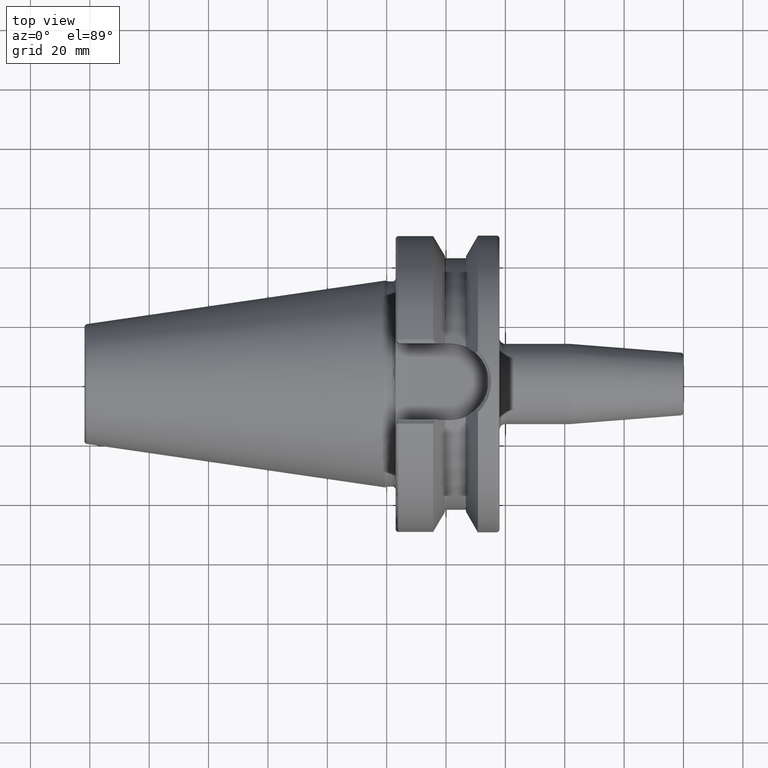
[diagram: clean part render]
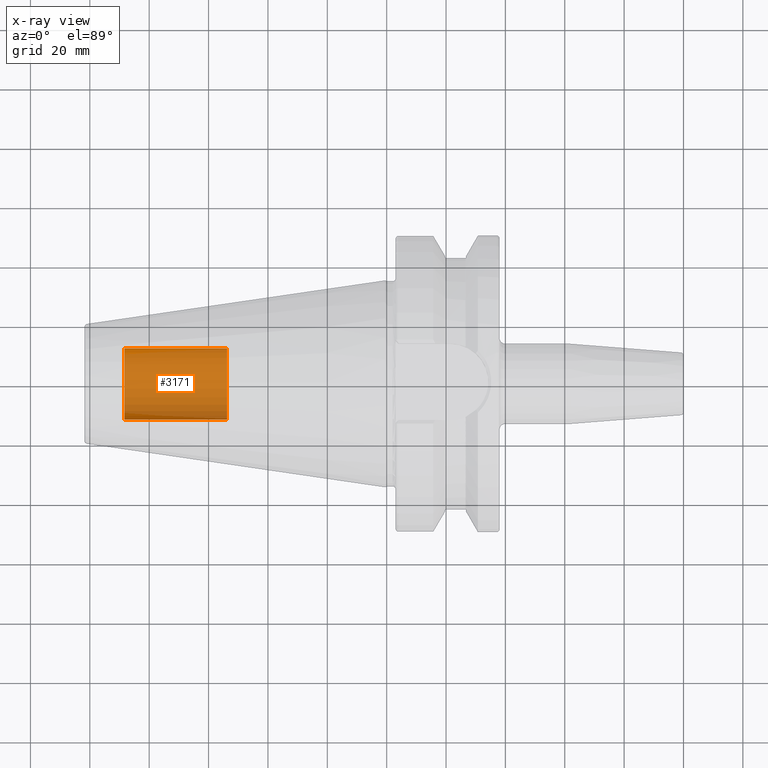
[diagram: x-ray — body ghosted, one internal face saturated and labeled with its STEP entity id]
A machine part, top view, then the same camera in x-ray: the body is ghosted and one INTERNAL B-rep face — a face not visible from any outside direction — is saturated and labeled: STEP entity #3171.
In plain terms, the highlighted cylindrical surface (edge-blend (fillet) strip) has radius 12.0032 mm, axis along (1, 0, 0).
Its self-contained STEP definition (entity closure, byte-faithful):
#3106=CARTESIAN_POINT('',(-8.835E1,0.E0,0.E0));
#3107=DIRECTION('',(-1.E0,0.E0,0.E0));
#3108=DIRECTION('',(0.E0,1.E0,0.E0));
#3109=AXIS2_PLACEMENT_3D('',#3106,#3107,#3108);
#3111=DIRECTION('',(1.E0,0.E0,0.E0));
#3112=VECTOR('',#3111,3.455E1);
#3113=CARTESIAN_POINT('',(-8.835E1,-1.200325E1,0.E0));
#3114=LINE('',#3113,#3112);
#3120=DIRECTION('',(1.E0,0.E0,0.E0));
#3121=VECTOR('',#3120,3.455E1);
#3122=CARTESIAN_POINT('',(-8.835E1,1.200325E1,0.E0));
#3123=LINE('',#3122,#3121);
#3129=CARTESIAN_POINT('',(-5.38E1,0.E0,0.E0));
#3130=DIRECTION('',(1.E0,0.E0,0.E0));
#3131=DIRECTION('',(0.E0,-1.E0,0.E0));
#3132=AXIS2_PLACEMENT_3D('',#3129,#3130,#3131);
#3144=CARTESIAN_POINT('',(-8.835E1,1.200325E1,0.E0));
#3145=CARTESIAN_POINT('',(-8.835E1,-1.200325E1,0.E0));
#3146=VERTEX_POINT('',#3144);
#3147=VERTEX_POINT('',#3145);
#3148=CARTESIAN_POINT('',(-5.38E1,1.200325E1,0.E0));
#3149=CARTESIAN_POINT('',(-5.38E1,-1.200325E1,0.E0));
#3150=VERTEX_POINT('',#3148);
#3151=VERTEX_POINT('',#3149);
#3156=CARTESIAN_POINT('',(-8.835E1,0.E0,0.E0));
#3157=DIRECTION('',(1.E0,0.E0,0.E0));
#3158=DIRECTION('',(0.E0,1.E0,0.E0));
#3159=AXIS2_PLACEMENT_3D('',#3156,#3157,#3158);
#3160=CYLINDRICAL_SURFACE('',#3159,1.200325E1);
#3162=ORIENTED_EDGE('',*,*,#3161,.T.);
#3164=ORIENTED_EDGE('',*,*,#3163,.T.);
#3166=ORIENTED_EDGE('',*,*,#3165,.T.);
#3168=ORIENTED_EDGE('',*,*,#3167,.F.);
#3169=EDGE_LOOP('',(#3162,#3164,#3166,#3168));
#3170=FACE_OUTER_BOUND('',#3169,.F.);
#3171=ADVANCED_FACE('',(#3170),#3160,.T.);
#3110=CIRCLE('',#3109,1.200325E1);
#3133=CIRCLE('',#3132,1.200325E1);
#3161=EDGE_CURVE('',#3146,#3147,#3110,.T.);
#3163=EDGE_CURVE('',#3147,#3151,#3114,.T.);
#3165=EDGE_CURVE('',#3151,#3150,#3133,.T.);
#3167=EDGE_CURVE('',#3146,#3150,#3123,.T.);